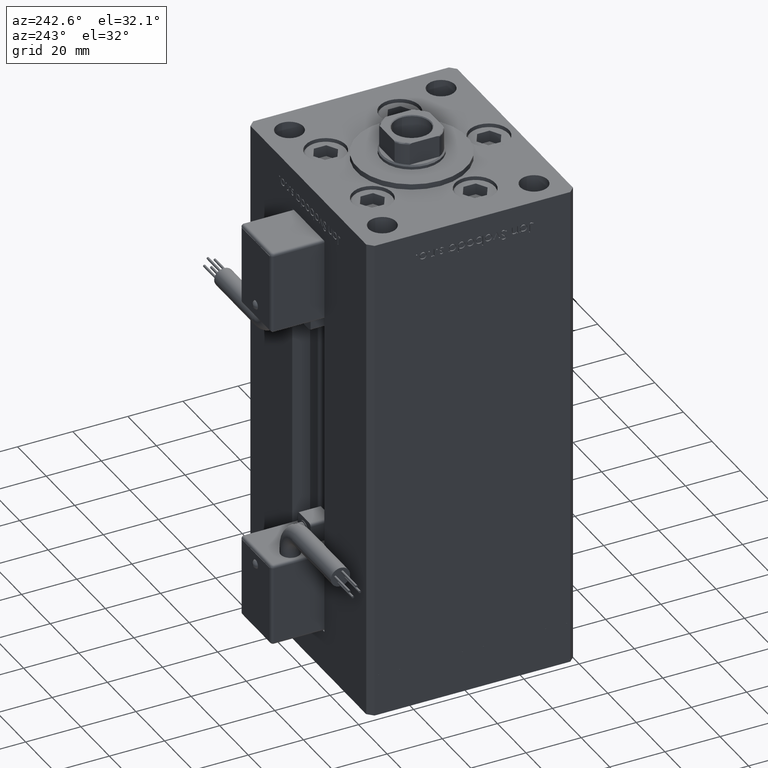
[diagram: clean part render]
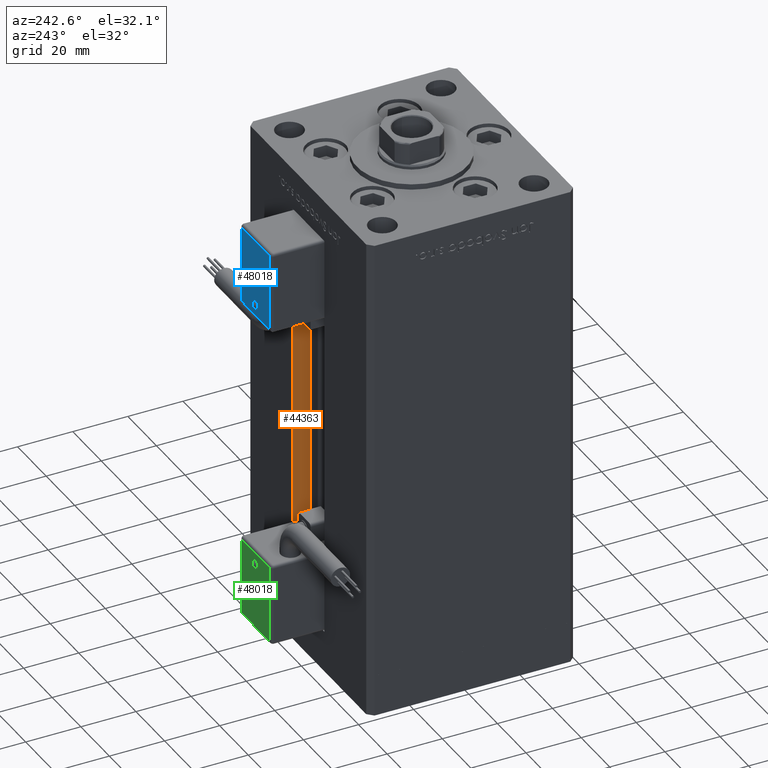
[diagram: same view with three faces highlighted in distinct colors, each labeled with its STEP entity id]
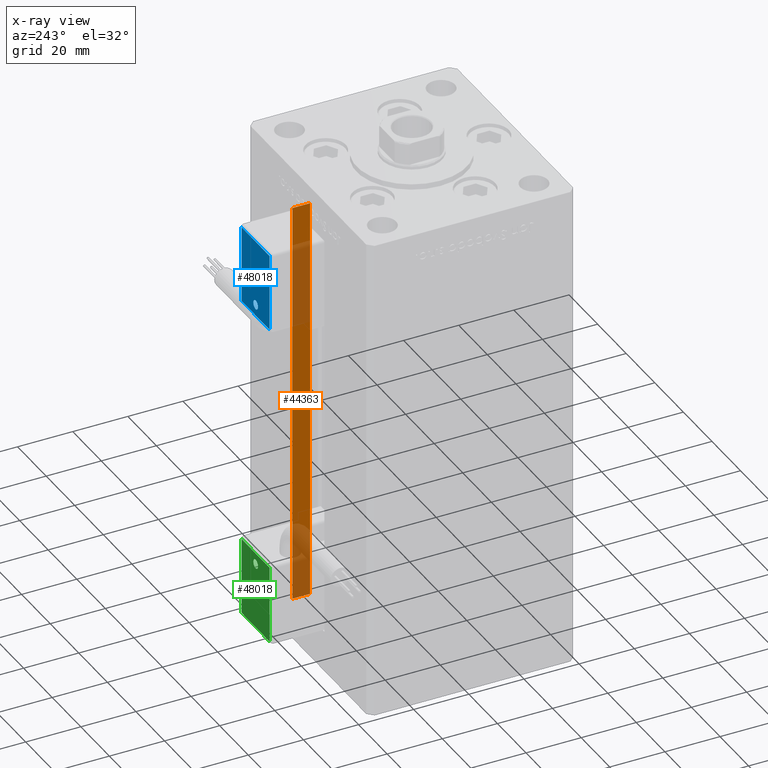
[diagram: x-ray of the same camera — body ghosted, the three highlighted faces saturated]
A machine part, auxiliary view with three faces highlighted in distinct colors.
The next image is the same camera in x-ray (body ghosted, the three faces saturated) — at least one of them is partly hidden behind the body in this view.
Their STEP definitions:

[orange] entity #44363 — the highlighted planar face has unit normal (1, 0, 0).
#821 = LINE ( 'NONE', #43241, #22902 ) ;
#1885 = EDGE_CURVE ( 'NONE', #48901, #3031, #24624, .T. ) ;
#3031 = VERTEX_POINT ( 'NONE', #14017 ) ;
#8911 = LINE ( 'NONE', #37929, #33114 ) ;
#9254 = DIRECTION ( 'NONE',  ( 1.000000000000000000, -0.000000000000000000, 0.000000000000000000 ) ) ;
#9719 = EDGE_CURVE ( 'NONE', #48901, #36487, #16048, .T. ) ;
#12001 = DIRECTION ( 'NONE',  ( -0.000000000000000000, -0.000000000000000000, 1.000000000000000000 ) ) ;
#13453 = CARTESIAN_POINT ( 'NONE',  ( 11.25000000000000000, 37.50000000000000000, 0.000000000000000000 ) ) ;
#13992 = DIRECTION ( 'NONE',  ( 0.000000000000000000, 0.000000000000000000, -1.000000000000000000 ) ) ;
#14017 = CARTESIAN_POINT ( 'NONE',  ( 11.25000000000000000, 30.99999999999999289, 148.5000000000000000 ) ) ;
#15083 = AXIS2_PLACEMENT_3D ( 'NONE', #48316, #9254, #13992 ) ;
#16048 = LINE ( 'NONE', #41987, #48458 ) ;
#21485 = DIRECTION ( 'NONE',  ( -0.000000000000000000, -1.000000000000000000, 0.000000000000000000 ) ) ;
#22902 = VECTOR ( 'NONE', #21485, 1000.000000000000000 ) ;
#24624 = LINE ( 'NONE', #37456, #37483 ) ;
#25946 = EDGE_LOOP ( 'NONE', ( #46397, #30981, #28228, #42347 ) ) ;
#28228 = ORIENTED_EDGE ( 'NONE', *, *, #1885, .T. ) ;
#29980 = DIRECTION ( 'NONE',  ( 0.000000000000000000, 1.000000000000000000, 0.000000000000000000 ) ) ;
#30981 = ORIENTED_EDGE ( 'NONE', *, *, #9719, .F. ) ;
#33114 = VECTOR ( 'NONE', #12001, 1000.000000000000000 ) ;
#35681 = CARTESIAN_POINT ( 'NONE',  ( 11.24999999999999289, 37.50000000000000000, 148.5000000000000000 ) ) ;
#36487 = VERTEX_POINT ( 'NONE', #13453 ) ;
#37456 = CARTESIAN_POINT ( 'NONE',  ( 11.25000000000000000, 30.99999999999999289, 0.000000000000000000 ) ) ;
#37483 = VECTOR ( 'NONE', #54507, 1000.000000000000000 ) ;
#37929 = CARTESIAN_POINT ( 'NONE',  ( 11.25000000000000000, 37.50000000000000000, 0.000000000000000000 ) ) ;
#38653 = EDGE_CURVE ( 'NONE', #43679, #3031, #821, .T. ) ;
#41987 = CARTESIAN_POINT ( 'NONE',  ( 11.25000000000000000, 30.99999999999999289, 0.000000000000000000 ) ) ;
#42347 = ORIENTED_EDGE ( 'NONE', *, *, #38653, .F. ) ;
#43241 = CARTESIAN_POINT ( 'NONE',  ( 11.25000000000000000, 0.000000000000000000, 148.5000000000000000 ) ) ;
#43679 = VERTEX_POINT ( 'NONE', #35681 ) ;
#44363 = ADVANCED_FACE ( 'NONE', ( #52237 ), #52513, .F. ) ;
#46397 = ORIENTED_EDGE ( 'NONE', *, *, #50557, .F. ) ;
#48316 = CARTESIAN_POINT ( 'NONE',  ( 11.25000000000000000, 30.99999999999999289, 0.000000000000000000 ) ) ;
#48458 = VECTOR ( 'NONE', #29980, 1000.000000000000000 ) ;
#48901 = VERTEX_POINT ( 'NONE', #53732 ) ;
#50557 = EDGE_CURVE ( 'NONE', #36487, #43679, #8911, .T. ) ;
#52237 = FACE_OUTER_BOUND ( 'NONE', #25946, .T. ) ;
#52513 = PLANE ( 'NONE',  #15083 ) ;
#53732 = CARTESIAN_POINT ( 'NONE',  ( 11.25000000000000000, 30.99999999999999289, 0.000000000000000000 ) ) ;
#54507 = DIRECTION ( 'NONE',  ( -0.000000000000000000, -0.000000000000000000, 1.000000000000000000 ) ) ;

[blue] entity #48018 — the highlighted planar face has unit normal (0, 1, 0).
#248 = DIRECTION ( 'NONE',  ( 0.000000000000000000, 2.478176394252581634E-16, -1.000000000000000000 ) ) ;
#819 = CARTESIAN_POINT ( 'NONE',  ( -9.799999999999998934, 51.60000000000000142, -54.00000000000000000 ) ) ;
#2827 = EDGE_CURVE ( 'NONE', #23998, #25485, #7624, .T. ) ;
#3188 = CARTESIAN_POINT ( 'NONE',  ( 9.799999999999998934, 51.59999999999999432, -26.00000000000000000 ) ) ;
#3337 = DIRECTION ( 'NONE',  ( 0.000000000000000000, -2.478176394252581634E-16, 1.000000000000000000 ) ) ;
#3437 = ORIENTED_EDGE ( 'NONE', *, *, #9670, .T. ) ;
#4235 = VERTEX_POINT ( 'NONE', #3188 ) ;
#4600 = VECTOR ( 'NONE', #248, 1000.000000000000000 ) ;
#6831 = FACE_BOUND ( 'NONE', #35084, .T. ) ;
#7624 = LINE ( 'NONE', #38016, #23270 ) ;
#7659 = DIRECTION ( 'NONE',  ( 0.000000000000000000, -2.478176394252581634E-16, 1.000000000000000000 ) ) ;
#9670 = EDGE_CURVE ( 'NONE', #27273, #11214, #47540, .T. ) ;
#11214 = VERTEX_POINT ( 'NONE', #55263 ) ;
#11957 = AXIS2_PLACEMENT_3D ( 'NONE', #34807, #47943, #38718 ) ;
#15202 = DIRECTION ( 'NONE',  ( -0.000000000000000000, 1.000000000000000000, 2.478176394252581634E-16 ) ) ;
#16147 = EDGE_CURVE ( 'NONE', #11214, #27273, #46721, .T. ) ;
#16189 = EDGE_CURVE ( 'NONE', #47508, #4235, #38448, .T. ) ;
#17006 = LINE ( 'NONE', #38206, #4600 ) ;
#18298 = ORIENTED_EDGE ( 'NONE', *, *, #16147, .T. ) ;
#19178 = CARTESIAN_POINT ( 'NONE',  ( -9.799999999999998934, 51.59999999999999432, -26.00000000000000000 ) ) ;
#20232 = DIRECTION ( 'NONE',  ( 0.000000000000000000, -1.000000000000000000, -2.478176394252581634E-16 ) ) ;
#22412 = ORIENTED_EDGE ( 'NONE', *, *, #16189, .T. ) ;
#23270 = VECTOR ( 'NONE', #24634, 1000.000000000000000 ) ;
#23998 = VERTEX_POINT ( 'NONE', #48547 ) ;
#24039 = ORIENTED_EDGE ( 'NONE', *, *, #54409, .T. ) ;
#24496 = EDGE_LOOP ( 'NONE', ( #22412, #31305, #28766, #24039 ) ) ;
#24634 = DIRECTION ( 'NONE',  ( -1.000000000000000000, 0.000000000000000000, 0.000000000000000000 ) ) ;
#25250 = AXIS2_PLACEMENT_3D ( 'NONE', #50936, #20232, #33617 ) ;
#25485 = VERTEX_POINT ( 'NONE', #819 ) ;
#27273 = VERTEX_POINT ( 'NONE', #35603 ) ;
#28766 = ORIENTED_EDGE ( 'NONE', *, *, #2827, .T. ) ;
#30353 = DIRECTION ( 'NONE',  ( 1.000000000000000000, 0.000000000000000000, 0.000000000000000000 ) ) ;
#31305 = ORIENTED_EDGE ( 'NONE', *, *, #50533, .T. ) ;
#33617 = DIRECTION ( 'NONE',  ( 0.000000000000000000, 0.000000000000000000, 1.000000000000000000 ) ) ;
#34807 = CARTESIAN_POINT ( 'NONE',  ( 1.122044604924999863E-14, 51.60000000000000142, -50.00000000000000000 ) ) ;
#35084 = EDGE_LOOP ( 'NONE', ( #18298, #3437 ) ) ;
#35603 = CARTESIAN_POINT ( 'NONE',  ( 1.067120849106190655E-14, 51.60000000000000142, -48.40573946085779511 ) ) ;
#36128 = FACE_OUTER_BOUND ( 'NONE', #24496, .T. ) ;
#37461 = AXIS2_PLACEMENT_3D ( 'NONE', #40589, #15202, #7659 ) ;
#37542 = VECTOR ( 'NONE', #3337, 1000.000000000000000 ) ;
#38016 = CARTESIAN_POINT ( 'NONE',  ( 9.799999999999998934, 51.60000000000000142, -54.00000000000000000 ) ) ;
#38206 = CARTESIAN_POINT ( 'NONE',  ( 9.799999999999998934, 51.59999999999999432, -26.00000000000000000 ) ) ;
#38448 = LINE ( 'NONE', #51582, #40461 ) ;
#38718 = DIRECTION ( 'NONE',  ( 0.000000000000000000, 0.000000000000000000, 1.000000000000000000 ) ) ;
#40461 = VECTOR ( 'NONE', #30353, 1000.000000000000000 ) ;
#40589 = CARTESIAN_POINT ( 'NONE',  ( -2.664535259099999904E-33, 51.59999999999998721, 1.277460843040079085E-14 ) ) ;
#44721 = LINE ( 'NONE', #53123, #37542 ) ;
#46721 = CIRCLE ( 'NONE', #11957, 1.594260539142210220 ) ;
#47508 = VERTEX_POINT ( 'NONE', #19178 ) ;
#47540 = CIRCLE ( 'NONE', #25250, 1.594260539142210220 ) ;
#47943 = DIRECTION ( 'NONE',  ( 0.000000000000000000, -1.000000000000000000, -2.478176394252581634E-16 ) ) ;
#48018 = ADVANCED_FACE ( 'NONE', ( #6831, #36128 ), #53451, .T. ) ;
#48547 = CARTESIAN_POINT ( 'NONE',  ( 9.799999999999998934, 51.60000000000000142, -54.00000000000000000 ) ) ;
#50533 = EDGE_CURVE ( 'NONE', #4235, #23998, #17006, .T. ) ;
#50936 = CARTESIAN_POINT ( 'NONE',  ( 1.122044604924999863E-14, 51.60000000000000142, -50.00000000000000000 ) ) ;
#51582 = CARTESIAN_POINT ( 'NONE',  ( -9.799999999999998934, 51.59999999999999432, -26.00000000000000000 ) ) ;
#53123 = CARTESIAN_POINT ( 'NONE',  ( -9.799999999999998934, 51.60000000000000142, -54.00000000000000000 ) ) ;
#53451 = PLANE ( 'NONE',  #37461 ) ;
#54409 = EDGE_CURVE ( 'NONE', #25485, #47508, #44721, .T. ) ;
#55263 = CARTESIAN_POINT ( 'NONE',  ( 1.157444300081134802E-14, 51.60000000000000142, -51.59426053914221200 ) ) ;

[green] entity #48018 — the highlighted planar face has unit normal (-0, 1, -0).
#248 = DIRECTION ( 'NONE',  ( 0.000000000000000000, 2.478176394252581634E-16, -1.000000000000000000 ) ) ;
#819 = CARTESIAN_POINT ( 'NONE',  ( -9.799999999999998934, 51.60000000000000142, -54.00000000000000000 ) ) ;
#2827 = EDGE_CURVE ( 'NONE', #23998, #25485, #7624, .T. ) ;
#3188 = CARTESIAN_POINT ( 'NONE',  ( 9.799999999999998934, 51.59999999999999432, -26.00000000000000000 ) ) ;
#3337 = DIRECTION ( 'NONE',  ( 0.000000000000000000, -2.478176394252581634E-16, 1.000000000000000000 ) ) ;
#3437 = ORIENTED_EDGE ( 'NONE', *, *, #9670, .T. ) ;
#4235 = VERTEX_POINT ( 'NONE', #3188 ) ;
#4600 = VECTOR ( 'NONE', #248, 1000.000000000000000 ) ;
#6831 = FACE_BOUND ( 'NONE', #35084, .T. ) ;
#7624 = LINE ( 'NONE', #38016, #23270 ) ;
#7659 = DIRECTION ( 'NONE',  ( 0.000000000000000000, -2.478176394252581634E-16, 1.000000000000000000 ) ) ;
#9670 = EDGE_CURVE ( 'NONE', #27273, #11214, #47540, .T. ) ;
#11214 = VERTEX_POINT ( 'NONE', #55263 ) ;
#11957 = AXIS2_PLACEMENT_3D ( 'NONE', #34807, #47943, #38718 ) ;
#15202 = DIRECTION ( 'NONE',  ( -0.000000000000000000, 1.000000000000000000, 2.478176394252581634E-16 ) ) ;
#16147 = EDGE_CURVE ( 'NONE', #11214, #27273, #46721, .T. ) ;
#16189 = EDGE_CURVE ( 'NONE', #47508, #4235, #38448, .T. ) ;
#17006 = LINE ( 'NONE', #38206, #4600 ) ;
#18298 = ORIENTED_EDGE ( 'NONE', *, *, #16147, .T. ) ;
#19178 = CARTESIAN_POINT ( 'NONE',  ( -9.799999999999998934, 51.59999999999999432, -26.00000000000000000 ) ) ;
#20232 = DIRECTION ( 'NONE',  ( 0.000000000000000000, -1.000000000000000000, -2.478176394252581634E-16 ) ) ;
#22412 = ORIENTED_EDGE ( 'NONE', *, *, #16189, .T. ) ;
#23270 = VECTOR ( 'NONE', #24634, 1000.000000000000000 ) ;
#23998 = VERTEX_POINT ( 'NONE', #48547 ) ;
#24039 = ORIENTED_EDGE ( 'NONE', *, *, #54409, .T. ) ;
#24496 = EDGE_LOOP ( 'NONE', ( #22412, #31305, #28766, #24039 ) ) ;
#24634 = DIRECTION ( 'NONE',  ( -1.000000000000000000, 0.000000000000000000, 0.000000000000000000 ) ) ;
#25250 = AXIS2_PLACEMENT_3D ( 'NONE', #50936, #20232, #33617 ) ;
#25485 = VERTEX_POINT ( 'NONE', #819 ) ;
#27273 = VERTEX_POINT ( 'NONE', #35603 ) ;
#28766 = ORIENTED_EDGE ( 'NONE', *, *, #2827, .T. ) ;
#30353 = DIRECTION ( 'NONE',  ( 1.000000000000000000, 0.000000000000000000, 0.000000000000000000 ) ) ;
#31305 = ORIENTED_EDGE ( 'NONE', *, *, #50533, .T. ) ;
#33617 = DIRECTION ( 'NONE',  ( 0.000000000000000000, 0.000000000000000000, 1.000000000000000000 ) ) ;
#34807 = CARTESIAN_POINT ( 'NONE',  ( 1.122044604924999863E-14, 51.60000000000000142, -50.00000000000000000 ) ) ;
#35084 = EDGE_LOOP ( 'NONE', ( #18298, #3437 ) ) ;
#35603 = CARTESIAN_POINT ( 'NONE',  ( 1.067120849106190655E-14, 51.60000000000000142, -48.40573946085779511 ) ) ;
#36128 = FACE_OUTER_BOUND ( 'NONE', #24496, .T. ) ;
#37461 = AXIS2_PLACEMENT_3D ( 'NONE', #40589, #15202, #7659 ) ;
#37542 = VECTOR ( 'NONE', #3337, 1000.000000000000000 ) ;
#38016 = CARTESIAN_POINT ( 'NONE',  ( 9.799999999999998934, 51.60000000000000142, -54.00000000000000000 ) ) ;
#38206 = CARTESIAN_POINT ( 'NONE',  ( 9.799999999999998934, 51.59999999999999432, -26.00000000000000000 ) ) ;
#38448 = LINE ( 'NONE', #51582, #40461 ) ;
#38718 = DIRECTION ( 'NONE',  ( 0.000000000000000000, 0.000000000000000000, 1.000000000000000000 ) ) ;
#40461 = VECTOR ( 'NONE', #30353, 1000.000000000000000 ) ;
#40589 = CARTESIAN_POINT ( 'NONE',  ( -2.664535259099999904E-33, 51.59999999999998721, 1.277460843040079085E-14 ) ) ;
#44721 = LINE ( 'NONE', #53123, #37542 ) ;
#46721 = CIRCLE ( 'NONE', #11957, 1.594260539142210220 ) ;
#47508 = VERTEX_POINT ( 'NONE', #19178 ) ;
#47540 = CIRCLE ( 'NONE', #25250, 1.594260539142210220 ) ;
#47943 = DIRECTION ( 'NONE',  ( 0.000000000000000000, -1.000000000000000000, -2.478176394252581634E-16 ) ) ;
#48018 = ADVANCED_FACE ( 'NONE', ( #6831, #36128 ), #53451, .T. ) ;
#48547 = CARTESIAN_POINT ( 'NONE',  ( 9.799999999999998934, 51.60000000000000142, -54.00000000000000000 ) ) ;
#50533 = EDGE_CURVE ( 'NONE', #4235, #23998, #17006, .T. ) ;
#50936 = CARTESIAN_POINT ( 'NONE',  ( 1.122044604924999863E-14, 51.60000000000000142, -50.00000000000000000 ) ) ;
#51582 = CARTESIAN_POINT ( 'NONE',  ( -9.799999999999998934, 51.59999999999999432, -26.00000000000000000 ) ) ;
#53123 = CARTESIAN_POINT ( 'NONE',  ( -9.799999999999998934, 51.60000000000000142, -54.00000000000000000 ) ) ;
#53451 = PLANE ( 'NONE',  #37461 ) ;
#54409 = EDGE_CURVE ( 'NONE', #25485, #47508, #44721, .T. ) ;
#55263 = CARTESIAN_POINT ( 'NONE',  ( 1.157444300081134802E-14, 51.60000000000000142, -51.59426053914221200 ) ) ;